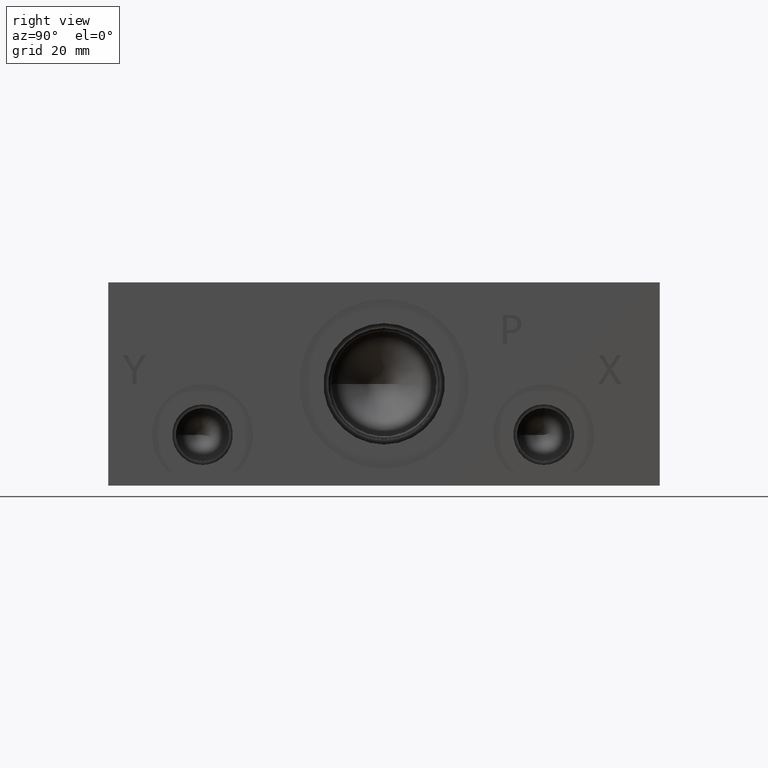
[diagram: clean part render]
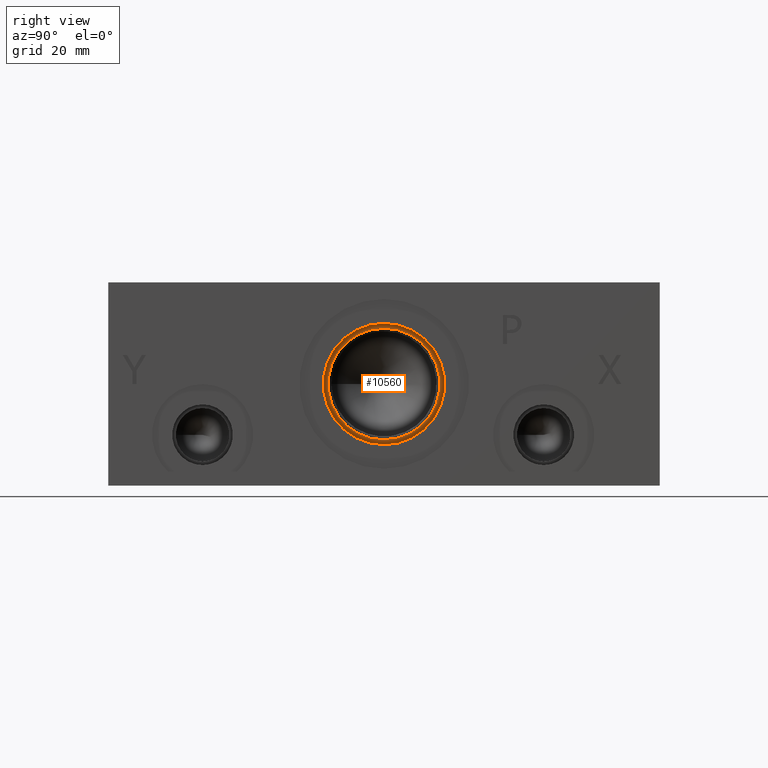
[diagram: same view with one face highlighted and labeled with its STEP entity id]
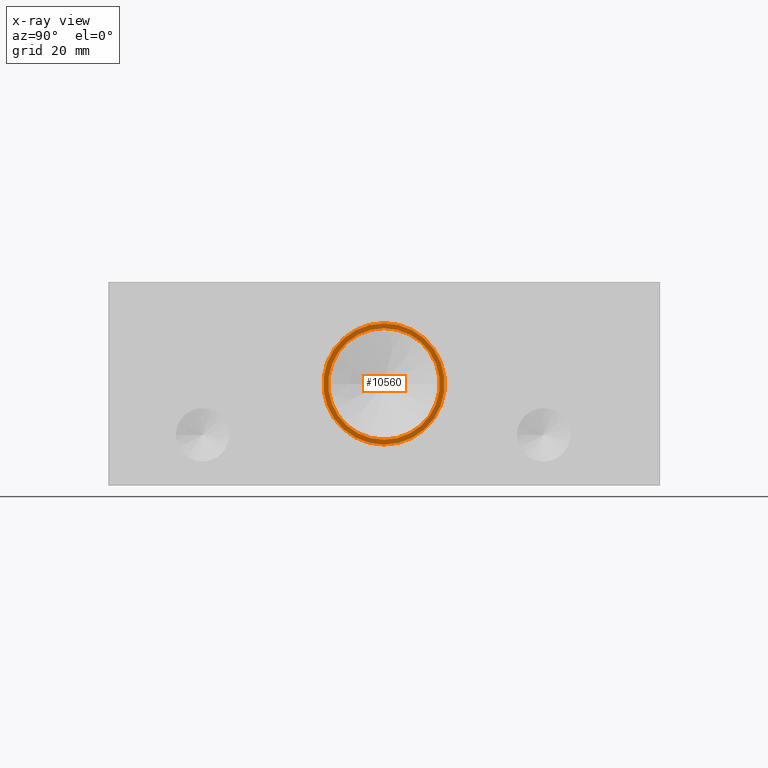
[diagram: x-ray of the same camera — body ghosted, the highlighted face saturated]
A machine part, right view. The second image highlights one B-rep face of the part: STEP entity #10560.
The next image is the same camera in x-ray: the body ghosted, the highlighted face saturated — about 0% of this face is hidden behind the body in this view.
In plain terms, the highlighted planar face has unit normal (-1, 0, 0).
Its self-contained STEP definition (entity closure, byte-faithful):
#140=CIRCLE('',#11042,13.2715);
#141=CIRCLE('',#11043,13.2715);
#142=CIRCLE('',#11045,12.2047);
#143=CIRCLE('',#11046,12.2047);
#290=FACE_BOUND('',#1766,.T.);
#1179=FACE_OUTER_BOUND('',#1765,.T.);
#1765=EDGE_LOOP('',(#8977,#8978));
#1766=EDGE_LOOP('',(#8979,#8980));
#4819=VERTEX_POINT('',#17732);
#4820=VERTEX_POINT('',#17734);
#4821=VERTEX_POINT('',#17738);
#4822=VERTEX_POINT('',#17739);
#6244=EDGE_CURVE('',#4819,#4820,#140,.T.);
#6245=EDGE_CURVE('',#4820,#4819,#141,.T.);
#6246=EDGE_CURVE('',#4821,#4822,#142,.T.);
#6247=EDGE_CURVE('',#4822,#4821,#143,.T.);
#8977=ORIENTED_EDGE('',*,*,#6245,.F.);
#8978=ORIENTED_EDGE('',*,*,#6244,.F.);
#8979=ORIENTED_EDGE('',*,*,#6246,.T.);
#8980=ORIENTED_EDGE('',*,*,#6247,.T.);
#9633=PLANE('',#11044);
#10560=ADVANCED_FACE('',(#1179,#290),#9633,.F.);
#11042=AXIS2_PLACEMENT_3D('',#17735,#13013,#13014);
#11043=AXIS2_PLACEMENT_3D('',#17736,#13015,#13016);
#11044=AXIS2_PLACEMENT_3D('',#17737,#13017,#13018);
#11045=AXIS2_PLACEMENT_3D('',#17740,#13019,#13020);
#11046=AXIS2_PLACEMENT_3D('',#17741,#13021,#13022);
#13013=DIRECTION('center_axis',(-1.,0.,0.));
#13014=DIRECTION('ref_axis',(0.,0.,1.));
#13015=DIRECTION('center_axis',(-1.,0.,0.));
#13016=DIRECTION('ref_axis',(0.,0.,1.));
#13017=DIRECTION('center_axis',(-1.,0.,0.));
#13018=DIRECTION('ref_axis',(0.,0.,1.));
#13019=DIRECTION('center_axis',(-1.,0.,0.));
#13020=DIRECTION('ref_axis',(0.,0.,1.));
#13021=DIRECTION('center_axis',(-1.,0.,0.));
#13022=DIRECTION('ref_axis',(0.,0.,1.));
#17732=CARTESIAN_POINT('',(77.3684,60.325,35.4965));
#17734=CARTESIAN_POINT('',(77.3684,60.325,8.9535));
#17735=CARTESIAN_POINT('Origin',(77.3684,60.325,22.225));
#17736=CARTESIAN_POINT('Origin',(77.3684,60.325,22.225));
#17737=CARTESIAN_POINT('Origin',(77.3684,60.325,10.0203));
#17738=CARTESIAN_POINT('',(77.3684,60.325,10.0203));
#17739=CARTESIAN_POINT('',(77.3684,60.325,34.4297));
#17740=CARTESIAN_POINT('Origin',(77.3684,60.325,22.225));
#17741=CARTESIAN_POINT('Origin',(77.3684,60.325,22.225));